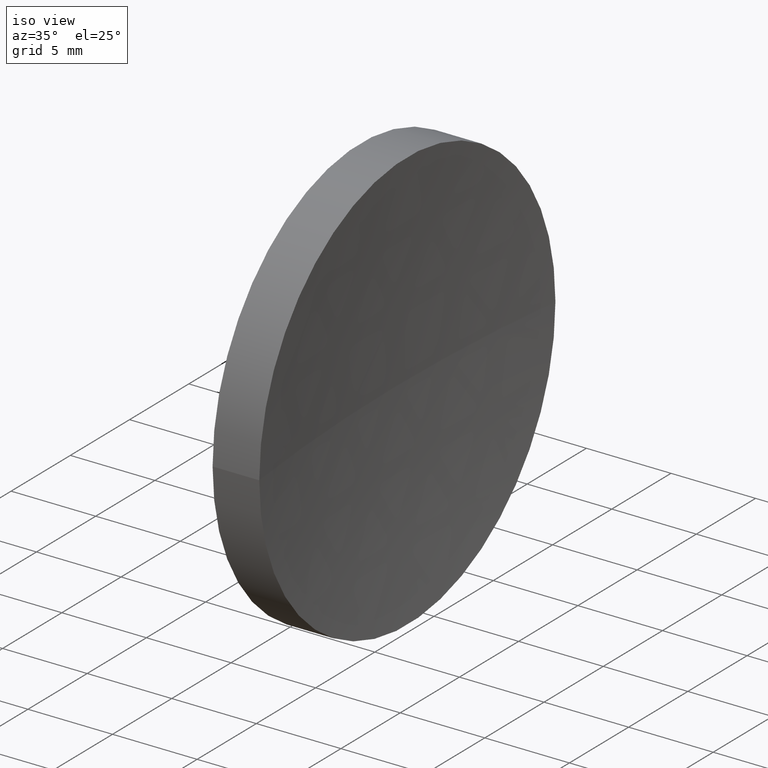
[diagram: clean part render]
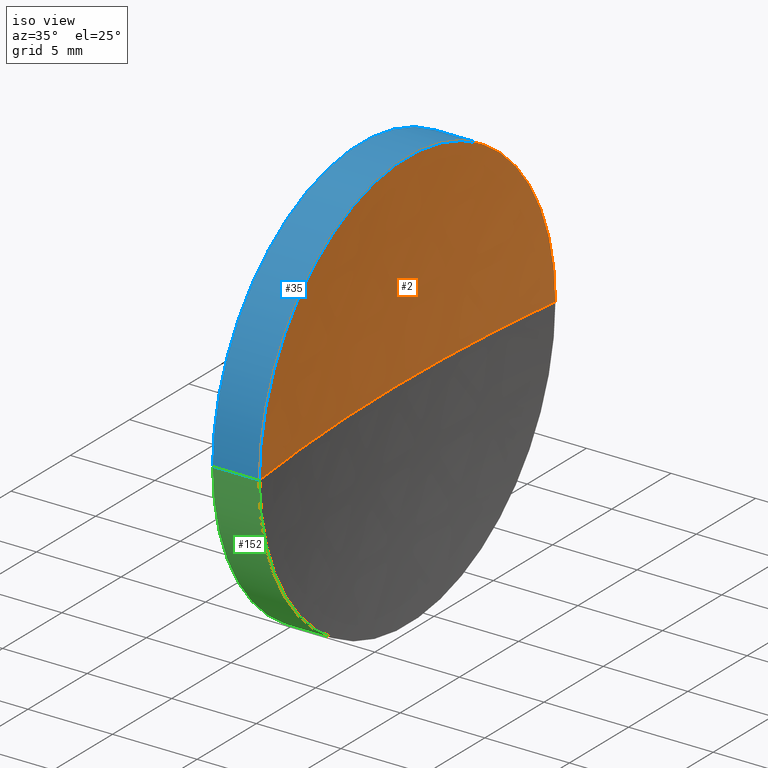
[diagram: same view with three faces highlighted in distinct colors, each labeled with its STEP entity id]
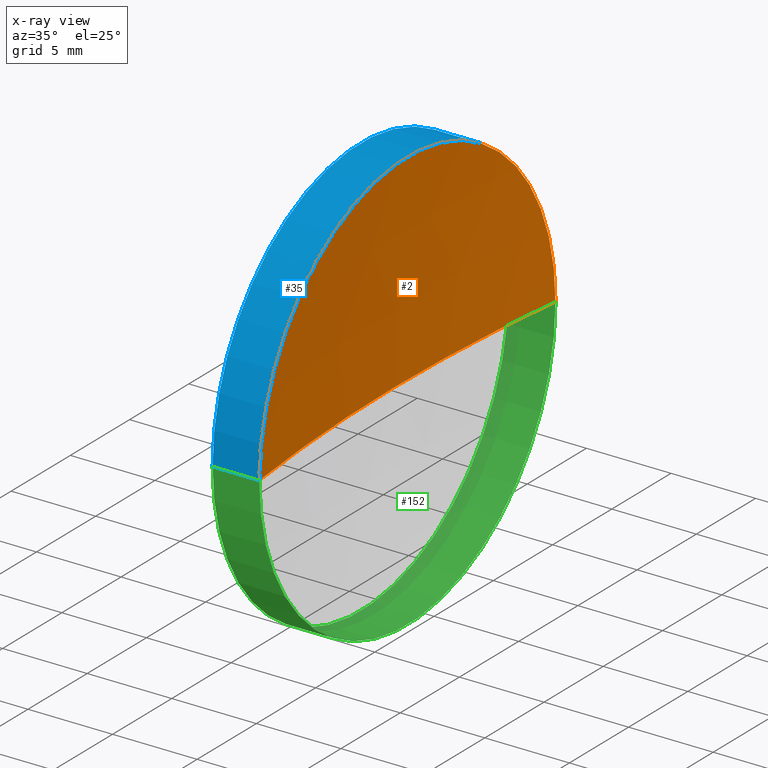
[diagram: x-ray of the same camera — body ghosted, the three highlighted faces saturated]
A machine part, iso view with three faces highlighted in distinct colors.
The next image is the same camera in x-ray (body ghosted, the three faces saturated) — at least one of them is partly hidden behind the body in this view.
Their STEP definitions:

[orange] entity #2 — the highlighted spherical surface has radius 103.28 mm.
#1 = DIRECTION ( 'NONE',  ( -9.351536221073556900E-032, -1.224646799147353200E-016, 1.000000000000000000 ) ) ;
#2 = ADVANCED_FACE ( 'NONE', ( #67 ), #70, .F. ) ;
#10 = DIRECTION ( 'NONE',  ( 0.0000000000000000000, -1.000000000000000000, -1.224646799147353200E-016 ) ) ;
#11 = VERTEX_POINT ( 'NONE', #40 ) ;
#17 = DIRECTION ( 'NONE',  ( -8.062231491758977600E-016, -1.000000000000000000, 0.0000000000000000000 ) ) ;
#24 = CARTESIAN_POINT ( 'NONE',  ( 60.11741957956709100, 32.57872591329309100, 0.0000000000000000000 ) ) ;
#34 = CIRCLE ( 'NONE', #151, 103.2800000000000300 ) ;
#36 = DIRECTION ( 'NONE',  ( -5.551115123125782700E-016, -1.000000000000000000, 0.0000000000000000000 ) ) ;
#40 = CARTESIAN_POINT ( 'NONE',  ( 60.11741957956707700, 20.07872591329309800, 0.0000000000000000000 ) ) ;
#47 = CARTESIAN_POINT ( 'NONE',  ( 60.11741957956710500, 45.07872591329317700, 1.530808498934189900E-015 ) ) ;
#48 = VERTEX_POINT ( 'NONE', #115 ) ;
#51 = EDGE_CURVE ( 'NONE', #91, #48, #109, .T. ) ;
#52 = EDGE_LOOP ( 'NONE', ( #137, #80, #125 ) ) ;
#54 = CIRCLE ( 'NONE', #116, 12.50000000000000000 ) ;
#59 = CARTESIAN_POINT ( 'NONE',  ( 162.6381901580211000, 32.57872591329311300, 0.0000000000000000000 ) ) ;
#62 = DIRECTION ( 'NONE',  ( 0.0000000000000000000, 0.0000000000000000000, 1.000000000000000000 ) ) ;
#67 = FACE_OUTER_BOUND ( 'NONE', #52, .T. ) ;
#68 = CARTESIAN_POINT ( 'NONE',  ( 162.6381901580211000, 32.57872591329311300, 0.0000000000000000000 ) ) ;
#70 = SPHERICAL_SURFACE ( 'NONE', #166, 103.2800000000000300 ) ;
#78 = AXIS2_PLACEMENT_3D ( 'NONE', #68, #1, #10 ) ;
#80 = ORIENTED_EDGE ( 'NONE', *, *, #150, .F. ) ;
#91 = VERTEX_POINT ( 'NONE', #47 ) ;
#107 = DIRECTION ( 'NONE',  ( 0.0000000000000000000, -0.0000000000000000000, -1.000000000000000000 ) ) ;
#109 = CIRCLE ( 'NONE', #78, 103.2800000000000300 ) ;
#112 = EDGE_CURVE ( 'NONE', #11, #48, #34, .T. ) ;
#115 = CARTESIAN_POINT ( 'NONE',  ( 59.35819015802108800, 32.57872591329317700, 0.0000000000000000000 ) ) ;
#116 = AXIS2_PLACEMENT_3D ( 'NONE', #24, #118, #36 ) ;
#118 = DIRECTION ( 'NONE',  ( -1.000000000000000000, 7.636108817321419600E-016, -0.0000000000000000000 ) ) ;
#125 = ORIENTED_EDGE ( 'NONE', *, *, #112, .T. ) ;
#136 = DIRECTION ( 'NONE',  ( -1.000000000000000000, 0.0000000000000000000, 0.0000000000000000000 ) ) ;
#137 = ORIENTED_EDGE ( 'NONE', *, *, #51, .F. ) ;
#150 = EDGE_CURVE ( 'NONE', #11, #91, #54, .T. ) ;
#151 = AXIS2_PLACEMENT_3D ( 'NONE', #59, #107, #136 ) ;
#164 = CARTESIAN_POINT ( 'NONE',  ( 162.6381901580211000, 32.57872591329311300, 0.0000000000000000000 ) ) ;
#166 = AXIS2_PLACEMENT_3D ( 'NONE', #164, #62, #17 ) ;

[blue] entity #35 — the highlighted cylindrical surface (partial cylindrical patch) has radius 12.5 mm, axis along (-1, 0, -0).
#3 = VERTEX_POINT ( 'NONE', #165 ) ;
#8 = CYLINDRICAL_SURFACE ( 'NONE', #147, 12.50000000000000000 ) ;
#11 = VERTEX_POINT ( 'NONE', #40 ) ;
#14 = CARTESIAN_POINT ( 'NONE',  ( 55.00739462442118800, 45.07872591329309100, 1.530808498934191500E-015 ) ) ;
#20 = VERTEX_POINT ( 'NONE', #124 ) ;
#21 = ORIENTED_EDGE ( 'NONE', *, *, #146, .T. ) ;
#24 = CARTESIAN_POINT ( 'NONE',  ( 60.11741957956709100, 32.57872591329309100, 0.0000000000000000000 ) ) ;
#27 = DIRECTION ( 'NONE',  ( -1.000000000000000000, 7.636108817321419600E-016, -0.0000000000000000000 ) ) ;
#28 = DIRECTION ( 'NONE',  ( -5.551115123125782700E-016, -1.000000000000000000, 0.0000000000000000000 ) ) ;
#29 = LINE ( 'NONE', #14, #64 ) ;
#35 = ADVANCED_FACE ( 'NONE', ( #66 ), #8, .T. ) ;
#36 = DIRECTION ( 'NONE',  ( -5.551115123125782700E-016, -1.000000000000000000, 0.0000000000000000000 ) ) ;
#40 = CARTESIAN_POINT ( 'NONE',  ( 60.11741957956707700, 20.07872591329309800, 0.0000000000000000000 ) ) ;
#42 = DIRECTION ( 'NONE',  ( -1.000000000000000000, 7.636108817321419600E-016, -0.0000000000000000000 ) ) ;
#47 = CARTESIAN_POINT ( 'NONE',  ( 60.11741957956710500, 45.07872591329317700, 1.530808498934189900E-015 ) ) ;
#54 = CIRCLE ( 'NONE', #116, 12.50000000000000000 ) ;
#56 = CIRCLE ( 'NONE', #96, 12.49999999999999600 ) ;
#61 = VECTOR ( 'NONE', #42, 1000.000000000000000 ) ;
#63 = EDGE_CURVE ( 'NONE', #11, #20, #138, .T. ) ;
#64 = VECTOR ( 'NONE', #27, 1000.000000000000000 ) ;
#66 = FACE_OUTER_BOUND ( 'NONE', #126, .T. ) ;
#69 = DIRECTION ( 'NONE',  ( -5.551115123125784700E-016, -1.000000000000000000, 0.0000000000000000000 ) ) ;
#75 = EDGE_CURVE ( 'NONE', #20, #3, #56, .T. ) ;
#91 = VERTEX_POINT ( 'NONE', #47 ) ;
#93 = ORIENTED_EDGE ( 'NONE', *, *, #150, .T. ) ;
#96 = AXIS2_PLACEMENT_3D ( 'NONE', #142, #98, #69 ) ;
#98 = DIRECTION ( 'NONE',  ( -1.000000000000000000, 7.636108817321419600E-016, -0.0000000000000000000 ) ) ;
#111 = CARTESIAN_POINT ( 'NONE',  ( 55.00739462442118100, 32.57872591329309800, 0.0000000000000000000 ) ) ;
#116 = AXIS2_PLACEMENT_3D ( 'NONE', #24, #118, #36 ) ;
#118 = DIRECTION ( 'NONE',  ( -1.000000000000000000, 7.636108817321419600E-016, -0.0000000000000000000 ) ) ;
#123 = DIRECTION ( 'NONE',  ( -1.000000000000000000, 7.636108817321419600E-016, -0.0000000000000000000 ) ) ;
#124 = CARTESIAN_POINT ( 'NONE',  ( 57.35819015802110200, 20.07872591329309800, 0.0000000000000000000 ) ) ;
#126 = EDGE_LOOP ( 'NONE', ( #93, #21, #133, #141 ) ) ;
#129 = CARTESIAN_POINT ( 'NONE',  ( 55.00739462442117400, 20.07872591329309500, 0.0000000000000000000 ) ) ;
#133 = ORIENTED_EDGE ( 'NONE', *, *, #75, .F. ) ;
#138 = LINE ( 'NONE', #129, #61 ) ;
#141 = ORIENTED_EDGE ( 'NONE', *, *, #63, .F. ) ;
#142 = CARTESIAN_POINT ( 'NONE',  ( 57.35819015802111000, 32.57872591329309800, 0.0000000000000000000 ) ) ;
#146 = EDGE_CURVE ( 'NONE', #91, #3, #29, .T. ) ;
#147 = AXIS2_PLACEMENT_3D ( 'NONE', #111, #123, #28 ) ;
#150 = EDGE_CURVE ( 'NONE', #11, #91, #54, .T. ) ;
#165 = CARTESIAN_POINT ( 'NONE',  ( 57.35819015802111700, 45.07872591329309100, 1.530808498934191900E-015 ) ) ;

[green] entity #152 — the highlighted cylindrical surface (partial cylindrical patch) has radius 12.5 mm, axis along (-1, 0, -0).
#3 = VERTEX_POINT ( 'NONE', #165 ) ;
#11 = VERTEX_POINT ( 'NONE', #40 ) ;
#14 = CARTESIAN_POINT ( 'NONE',  ( 55.00739462442118800, 45.07872591329309100, 1.530808498934191500E-015 ) ) ;
#20 = VERTEX_POINT ( 'NONE', #124 ) ;
#27 = DIRECTION ( 'NONE',  ( -1.000000000000000000, 7.636108817321419600E-016, -0.0000000000000000000 ) ) ;
#29 = LINE ( 'NONE', #14, #64 ) ;
#30 = ORIENTED_EDGE ( 'NONE', *, *, #121, .F. ) ;
#37 = DIRECTION ( 'NONE',  ( -1.000000000000000000, 7.636108817321419600E-016, -0.0000000000000000000 ) ) ;
#40 = CARTESIAN_POINT ( 'NONE',  ( 60.11741957956707700, 20.07872591329309800, 0.0000000000000000000 ) ) ;
#41 = ORIENTED_EDGE ( 'NONE', *, *, #146, .F. ) ;
#42 = DIRECTION ( 'NONE',  ( -1.000000000000000000, 7.636108817321419600E-016, -0.0000000000000000000 ) ) ;
#45 = CARTESIAN_POINT ( 'NONE',  ( 60.11741957956709100, 32.57872591329309100, 0.0000000000000000000 ) ) ;
#47 = CARTESIAN_POINT ( 'NONE',  ( 60.11741957956710500, 45.07872591329317700, 1.530808498934189900E-015 ) ) ;
#58 = DIRECTION ( 'NONE',  ( -5.551115123125784700E-016, -1.000000000000000000, 0.0000000000000000000 ) ) ;
#61 = VECTOR ( 'NONE', #42, 1000.000000000000000 ) ;
#63 = EDGE_CURVE ( 'NONE', #11, #20, #138, .T. ) ;
#64 = VECTOR ( 'NONE', #27, 1000.000000000000000 ) ;
#76 = CARTESIAN_POINT ( 'NONE',  ( 55.00739462442118100, 32.57872591329309800, 0.0000000000000000000 ) ) ;
#77 = AXIS2_PLACEMENT_3D ( 'NONE', #76, #159, #104 ) ;
#79 = ORIENTED_EDGE ( 'NONE', *, *, #97, .T. ) ;
#82 = EDGE_LOOP ( 'NONE', ( #41, #79, #162, #30 ) ) ;
#91 = VERTEX_POINT ( 'NONE', #47 ) ;
#94 = CYLINDRICAL_SURFACE ( 'NONE', #77, 12.50000000000000000 ) ;
#95 = CIRCLE ( 'NONE', #148, 12.50000000000000000 ) ;
#97 = EDGE_CURVE ( 'NONE', #91, #11, #95, .T. ) ;
#99 = FACE_OUTER_BOUND ( 'NONE', #82, .T. ) ;
#104 = DIRECTION ( 'NONE',  ( -5.551115123125782700E-016, -1.000000000000000000, 0.0000000000000000000 ) ) ;
#119 = DIRECTION ( 'NONE',  ( -5.551115123125782700E-016, -1.000000000000000000, 0.0000000000000000000 ) ) ;
#121 = EDGE_CURVE ( 'NONE', #3, #20, #143, .T. ) ;
#124 = CARTESIAN_POINT ( 'NONE',  ( 57.35819015802110200, 20.07872591329309800, 0.0000000000000000000 ) ) ;
#129 = CARTESIAN_POINT ( 'NONE',  ( 55.00739462442117400, 20.07872591329309500, 0.0000000000000000000 ) ) ;
#135 = CARTESIAN_POINT ( 'NONE',  ( 57.35819015802111000, 32.57872591329309800, 0.0000000000000000000 ) ) ;
#138 = LINE ( 'NONE', #129, #61 ) ;
#143 = CIRCLE ( 'NONE', #163, 12.49999999999999600 ) ;
#146 = EDGE_CURVE ( 'NONE', #91, #3, #29, .T. ) ;
#148 = AXIS2_PLACEMENT_3D ( 'NONE', #45, #37, #119 ) ;
#152 = ADVANCED_FACE ( 'NONE', ( #99 ), #94, .T. ) ;
#158 = DIRECTION ( 'NONE',  ( -1.000000000000000000, 7.636108817321419600E-016, -0.0000000000000000000 ) ) ;
#159 = DIRECTION ( 'NONE',  ( -1.000000000000000000, 7.636108817321419600E-016, -0.0000000000000000000 ) ) ;
#162 = ORIENTED_EDGE ( 'NONE', *, *, #63, .T. ) ;
#163 = AXIS2_PLACEMENT_3D ( 'NONE', #135, #158, #58 ) ;
#165 = CARTESIAN_POINT ( 'NONE',  ( 57.35819015802111700, 45.07872591329309100, 1.530808498934191900E-015 ) ) ;